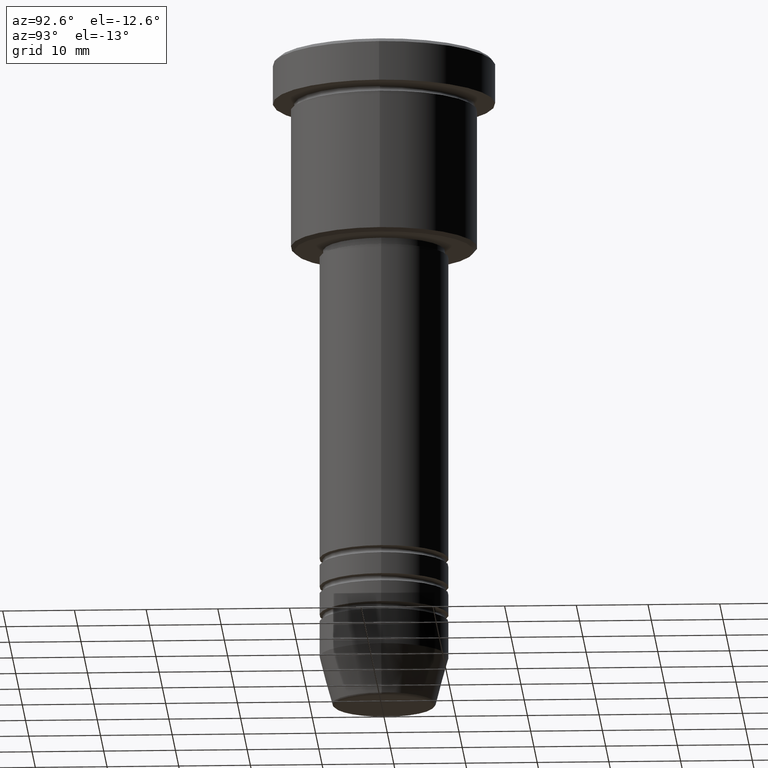
[diagram: clean part render]
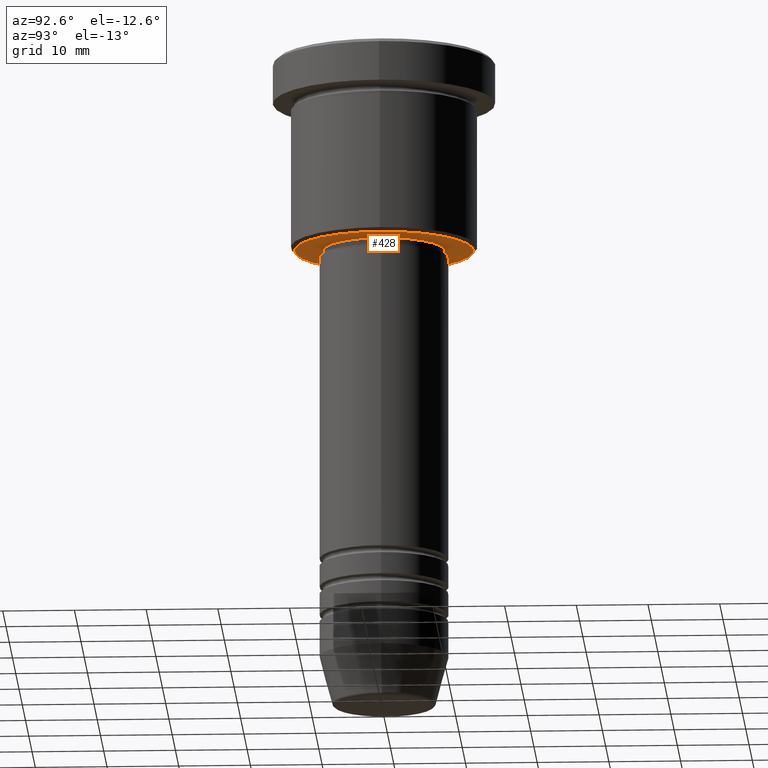
[diagram: same view with one face highlighted and labeled with its STEP entity id]
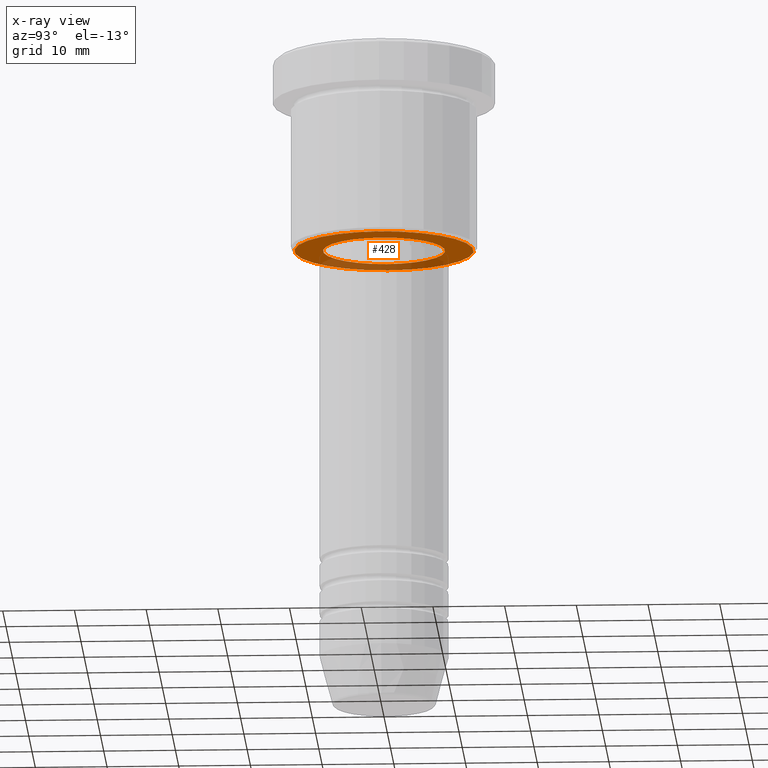
[diagram: x-ray of the same camera — body ghosted, the highlighted face saturated]
A machine part, auxiliary view. The second image highlights one B-rep face of the part: STEP entity #428.
The next image is the same camera in x-ray: the body ghosted, the highlighted face saturated — about 28% of this face is hidden behind the body in this view.
In plain terms, the highlighted planar face has unit normal (0, 0, -1).
Its self-contained STEP definition (entity closure, byte-faithful):
#4 = ORIENTED_EDGE ( 'NONE', *, *, #241, .T. ) ;
#24 = CARTESIAN_POINT ( 'NONE',  ( 0.000000000000000000, 0.000000000000000000, -27.00000000000000355 ) ) ;
#53 = CARTESIAN_POINT ( 'NONE',  ( 0.000000000000000000, 13.00000000000000000, -27.00000000000000355 ) ) ;
#59 = EDGE_CURVE ( 'NONE', #135, #240, #1101, .T. ) ;
#133 = CARTESIAN_POINT ( 'NONE',  ( 0.000000000000000000, 0.000000000000000000, -27.00000000000000355 ) ) ;
#135 = VERTEX_POINT ( 'NONE', #334 ) ;
#240 = VERTEX_POINT ( 'NONE', #767 ) ;
#241 = EDGE_CURVE ( 'NONE', #726, #438, #429, .T. ) ;
#252 = EDGE_CURVE ( 'NONE', #240, #135, #620, .T. ) ;
#258 = CIRCLE ( 'NONE', #761, 12.49999999999999822 ) ;
#268 = DIRECTION ( 'NONE',  ( 0.000000000000000000, 0.000000000000000000, -1.000000000000000000 ) ) ;
#304 = DIRECTION ( 'NONE',  ( -1.000000000000000000, 0.000000000000000000, 0.000000000000000000 ) ) ;
#333 = DIRECTION ( 'NONE',  ( -1.000000000000000000, 0.000000000000000000, -0.000000000000000000 ) ) ;
#334 = CARTESIAN_POINT ( 'NONE',  ( -8.500000000000000000, 1.040949779275250140E-15, -27.00000000000000355 ) ) ;
#353 = AXIS2_PLACEMENT_3D ( 'NONE', #53, #711, #333 ) ;
#382 = CARTESIAN_POINT ( 'NONE',  ( 0.000000000000000000, 0.000000000000000000, -27.00000000000000355 ) ) ;
#423 = PLANE ( 'NONE',  #353 ) ;
#428 = ADVANCED_FACE ( 'NONE', ( #876, #1171 ), #423, .T. ) ;
#429 = CIRCLE ( 'NONE', #600, 12.49999999999999822 ) ;
#438 = VERTEX_POINT ( 'NONE', #531 ) ;
#480 = DIRECTION ( 'NONE',  ( -0.000000000000000000, -0.000000000000000000, 1.000000000000000000 ) ) ;
#508 = EDGE_LOOP ( 'NONE', ( #4, #820 ) ) ;
#513 = ORIENTED_EDGE ( 'NONE', *, *, #59, .T. ) ;
#531 = CARTESIAN_POINT ( 'NONE',  ( -12.49999999999999822, 1.561424668912875308E-15, -27.00000000000000355 ) ) ;
#574 = CARTESIAN_POINT ( 'NONE',  ( 12.49999999999999822, 0.000000000000000000, -27.00000000000000355 ) ) ;
#600 = AXIS2_PLACEMENT_3D ( 'NONE', #1070, #673, #304 ) ;
#607 = EDGE_CURVE ( 'NONE', #438, #726, #258, .T. ) ;
#608 = DIRECTION ( 'NONE',  ( 1.000000000000000000, 0.000000000000000000, 0.000000000000000000 ) ) ;
#609 = ORIENTED_EDGE ( 'NONE', *, *, #252, .T. ) ;
#620 = CIRCLE ( 'NONE', #1165, 8.500000000000000000 ) ;
#673 = DIRECTION ( 'NONE',  ( 0.000000000000000000, 0.000000000000000000, -1.000000000000000000 ) ) ;
#687 = DIRECTION ( 'NONE',  ( -0.000000000000000000, -0.000000000000000000, 1.000000000000000000 ) ) ;
#711 = DIRECTION ( 'NONE',  ( 0.000000000000000000, 0.000000000000000000, -1.000000000000000000 ) ) ;
#726 = VERTEX_POINT ( 'NONE', #574 ) ;
#761 = AXIS2_PLACEMENT_3D ( 'NONE', #24, #268, #1113 ) ;
#767 = CARTESIAN_POINT ( 'NONE',  ( 8.500000000000000000, 0.000000000000000000, -27.00000000000000355 ) ) ;
#820 = ORIENTED_EDGE ( 'NONE', *, *, #607, .T. ) ;
#876 = FACE_OUTER_BOUND ( 'NONE', #508, .T. ) ;
#877 = AXIS2_PLACEMENT_3D ( 'NONE', #382, #480, #1117 ) ;
#888 = EDGE_LOOP ( 'NONE', ( #609, #513 ) ) ;
#1070 = CARTESIAN_POINT ( 'NONE',  ( 0.000000000000000000, 0.000000000000000000, -27.00000000000000355 ) ) ;
#1101 = CIRCLE ( 'NONE', #877, 8.500000000000000000 ) ;
#1113 = DIRECTION ( 'NONE',  ( -1.000000000000000000, 0.000000000000000000, 0.000000000000000000 ) ) ;
#1117 = DIRECTION ( 'NONE',  ( 1.000000000000000000, 0.000000000000000000, 0.000000000000000000 ) ) ;
#1165 = AXIS2_PLACEMENT_3D ( 'NONE', #133, #687, #608 ) ;
#1171 = FACE_BOUND ( 'NONE', #888, .T. ) ;